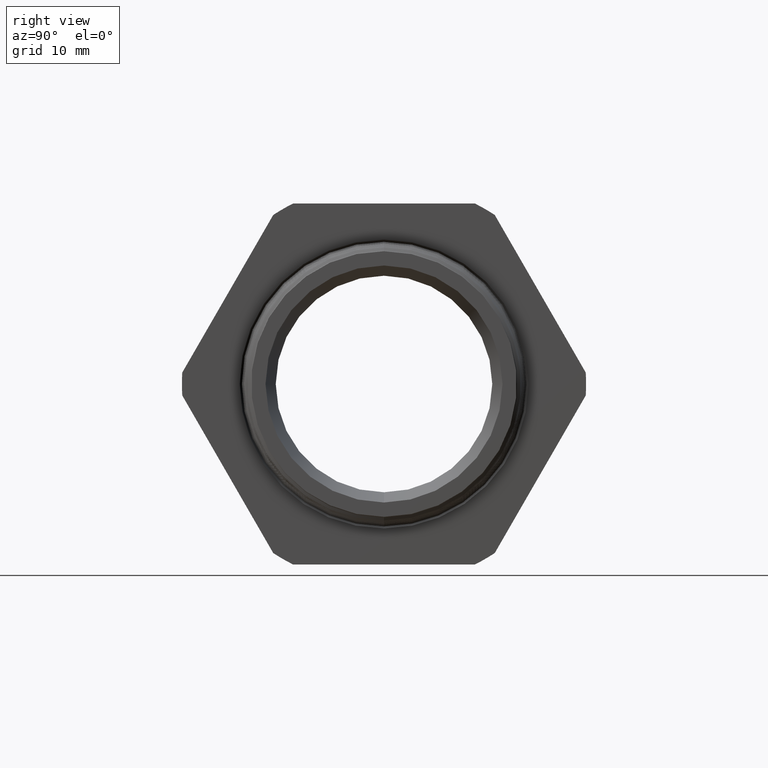
[diagram: clean part render]
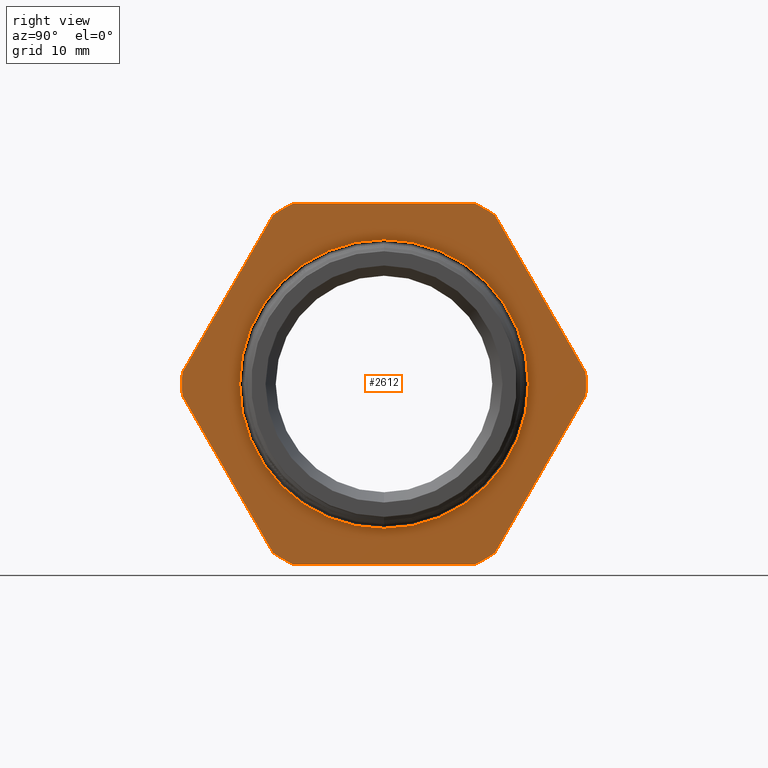
[diagram: same view with one face highlighted and labeled with its STEP entity id]
A machine part, right view. The second image highlights one B-rep face of the part: STEP entity #2612.
In plain terms, the highlighted planar face has unit normal (-1, 0, 0).
Its self-contained STEP definition (entity closure, byte-faithful):
#629 = DIRECTION ( 'NONE',  ( 0.0000000000000000000, 0.0000000000000000000, 1.000000000000000000 ) ) ;
#630 = DIRECTION ( 'NONE',  ( -1.000000000000000000, 0.0000000000000000000, 0.0000000000000000000 ) ) ;
#631 = CARTESIAN_POINT ( 'NONE',  ( 0.0000000000000000000, 0.0000000000000000000, 0.0000000000000000000 ) ) ;
#632 = AXIS2_PLACEMENT_3D ( 'NONE', #631, #630, #629 ) ;
#633 = CIRCLE ( 'NONE', #632, 0.7280000000000000900 ) ;
#666 = DIRECTION ( 'NONE',  ( 0.0000000000000000000, 0.0000000000000000000, 1.000000000000000000 ) ) ;
#667 = DIRECTION ( 'NONE',  ( -1.000000000000000000, 0.0000000000000000000, 0.0000000000000000000 ) ) ;
#668 = CARTESIAN_POINT ( 'NONE',  ( 0.0000000000000000000, 0.7280000000000000900, 0.0000000000000000000 ) ) ;
#669 = AXIS2_PLACEMENT_3D ( 'NONE', #668, #667, #666 ) ;
#670 = PLANE ( 'NONE',  #669 ) ;
#671 = FACE_BOUND ( 'NONE', #3152, .T. ) ;
#672 = FACE_OUTER_BOUND ( 'NONE', #2611, .T. ) ;
#673 = CARTESIAN_POINT ( 'NONE',  ( 0.0000000000000000000, -0.7268402752278255700, -0.04107571431805972400 ) ) ;
#674 = CARTESIAN_POINT ( 'NONE',  ( 0.0000000000000000000, -0.3989927496919442600, -0.6089242856819405700 ) ) ;
#675 = CARTESIAN_POINT ( 'NONE',  ( 0.0000000000000000000, -0.3278475255358812000, -0.6499999999999999100 ) ) ;
#680 = DIRECTION ( 'NONE',  ( 0.0000000000000000000, 0.5000000000000003300, -0.8660254037844383700 ) ) ;
#681 = VECTOR ( 'NONE', #680, 39.37007874015748100 ) ;
#682 = CARTESIAN_POINT ( 'NONE',  ( 0.0000000000000000000, -0.7268402752278255700, -0.04107571431805972400 ) ) ;
#683 = LINE ( 'NONE', #682, #681 ) ;
#704 = DIRECTION ( 'NONE',  ( 0.0000000000000000000, 0.0000000000000000000, 1.000000000000000000 ) ) ;
#705 = DIRECTION ( 'NONE',  ( 1.000000000000000000, 0.0000000000000000000, 0.0000000000000000000 ) ) ;
#706 = AXIS2_PLACEMENT_3D ( 'NONE', #711, #705, #704 ) ;
#707 = CIRCLE ( 'NONE', #706, 0.5199999999999999100 ) ;
#711 = CARTESIAN_POINT ( 'NONE',  ( 0.0000000000000000000, 0.0000000000000000000, 0.0000000000000000000 ) ) ;
#882 = CARTESIAN_POINT ( 'NONE',  ( 0.0000000000000000000, -0.7268402752278255700, 0.04107571431805941800 ) ) ;
#919 = DIRECTION ( 'NONE',  ( 0.0000000000000000000, -0.5000000000000001100, -0.8660254037844386000 ) ) ;
#920 = VECTOR ( 'NONE', #919, 39.37007874015748100 ) ;
#921 = CARTESIAN_POINT ( 'NONE',  ( 0.0000000000000000000, -0.3989927496919442600, 0.6089242856819405700 ) ) ;
#922 = LINE ( 'NONE', #921, #920 ) ;
#966 = DIRECTION ( 'NONE',  ( 0.0000000000000000000, 0.0000000000000000000, 1.000000000000000000 ) ) ;
#967 = DIRECTION ( 'NONE',  ( -1.000000000000000000, 0.0000000000000000000, 0.0000000000000000000 ) ) ;
#968 = CARTESIAN_POINT ( 'NONE',  ( 0.0000000000000000000, 0.0000000000000000000, 0.0000000000000000000 ) ) ;
#969 = AXIS2_PLACEMENT_3D ( 'NONE', #968, #967, #966 ) ;
#970 = CIRCLE ( 'NONE', #969, 0.7280000000000000900 ) ;
#971 = CARTESIAN_POINT ( 'NONE',  ( 0.0000000000000000000, -0.3989927496919439800, 0.6089242856819409000 ) ) ;
#1029 = CARTESIAN_POINT ( 'NONE',  ( 0.0000000000000000000, -0.3278475255358813700, 0.6499999999999999100 ) ) ;
#1030 = DIRECTION ( 'NONE',  ( 0.0000000000000000000, -1.000000000000000000, 0.0000000000000000000 ) ) ;
#1031 = VECTOR ( 'NONE', #1030, 39.37007874015748100 ) ;
#1032 = CARTESIAN_POINT ( 'NONE',  ( 0.0000000000000000000, 0.3278475255358813700, 0.6499999999999999100 ) ) ;
#1033 = LINE ( 'NONE', #1032, #1031 ) ;
#1034 = LINE ( 'NONE', #1095, #1094 ) ;
#1035 = DIRECTION ( 'NONE',  ( 0.0000000000000000000, -0.5000000000000003300, 0.8660254037844383700 ) ) ;
#1036 = VECTOR ( 'NONE', #1035, 39.37007874015748100 ) ;
#1037 = CARTESIAN_POINT ( 'NONE',  ( 0.0000000000000000000, 0.7268402752278256800, 0.04107571431805962700 ) ) ;
#1038 = DIRECTION ( 'NONE',  ( 0.0000000000000000000, 0.0000000000000000000, 1.000000000000000000 ) ) ;
#1039 = DIRECTION ( 'NONE',  ( -1.000000000000000000, 0.0000000000000000000, 0.0000000000000000000 ) ) ;
#1040 = CARTESIAN_POINT ( 'NONE',  ( 0.0000000000000000000, 0.0000000000000000000, 0.0000000000000000000 ) ) ;
#1041 = AXIS2_PLACEMENT_3D ( 'NONE', #1040, #1039, #1038 ) ;
#1042 = CIRCLE ( 'NONE', #1041, 0.7280000000000000900 ) ;
#1043 = LINE ( 'NONE', #1037, #1036 ) ;
#1044 = CARTESIAN_POINT ( 'NONE',  ( 0.0000000000000000000, 0.3278475255358810900, -0.6500000000000000200 ) ) ;
#1045 = CARTESIAN_POINT ( 'NONE',  ( 0.0000000000000000000, 0.3989927496919443200, 0.6089242856819405700 ) ) ;
#1051 = DIRECTION ( 'NONE',  ( 0.0000000000000000000, 0.0000000000000000000, 1.000000000000000000 ) ) ;
#1052 = DIRECTION ( 'NONE',  ( -1.000000000000000000, 0.0000000000000000000, 0.0000000000000000000 ) ) ;
#1053 = CARTESIAN_POINT ( 'NONE',  ( 0.0000000000000000000, 0.0000000000000000000, 0.0000000000000000000 ) ) ;
#1054 = AXIS2_PLACEMENT_3D ( 'NONE', #1053, #1052, #1051 ) ;
#1055 = CIRCLE ( 'NONE', #1054, 0.7280000000000000900 ) ;
#1056 = CARTESIAN_POINT ( 'NONE',  ( 0.0000000000000000000, 0.3278475255358814200, 0.6499999999999998000 ) ) ;
#1058 = CARTESIAN_POINT ( 'NONE',  ( 0.0000000000000000000, 0.3989927496919443200, -0.6089242856819405700 ) ) ;
#1064 = CARTESIAN_POINT ( 'NONE',  ( 0.0000000000000000000, 0.7268402752278256800, -0.04107571431805931400 ) ) ;
#1086 = DIRECTION ( 'NONE',  ( 0.0000000000000000000, 0.0000000000000000000, 1.000000000000000000 ) ) ;
#1087 = DIRECTION ( 'NONE',  ( -1.000000000000000000, 0.0000000000000000000, 0.0000000000000000000 ) ) ;
#1088 = CARTESIAN_POINT ( 'NONE',  ( 0.0000000000000000000, 0.0000000000000000000, 0.0000000000000000000 ) ) ;
#1089 = AXIS2_PLACEMENT_3D ( 'NONE', #1088, #1087, #1086 ) ;
#1090 = CIRCLE ( 'NONE', #1089, 0.7280000000000000900 ) ;
#1091 = CARTESIAN_POINT ( 'NONE',  ( 0.0000000000000000000, 0.7268402752278255700, 0.04107571431805956400 ) ) ;
#1093 = DIRECTION ( 'NONE',  ( 0.0000000000000000000, 1.000000000000000000, 0.0000000000000000000 ) ) ;
#1094 = VECTOR ( 'NONE', #1093, 39.37007874015748100 ) ;
#1095 = CARTESIAN_POINT ( 'NONE',  ( 0.0000000000000000000, -0.3278475255358810900, -0.6500000000000000200 ) ) ;
#1105 = DIRECTION ( 'NONE',  ( 0.0000000000000000000, 0.5000000000000001100, 0.8660254037844386000 ) ) ;
#1106 = VECTOR ( 'NONE', #1105, 39.37007874015748100 ) ;
#1107 = CARTESIAN_POINT ( 'NONE',  ( 0.0000000000000000000, 0.3989927496919443200, -0.6089242856819405700 ) ) ;
#1108 = LINE ( 'NONE', #1107, #1106 ) ;
#1248 = DIRECTION ( 'NONE',  ( 0.0000000000000000000, 0.0000000000000000000, 1.000000000000000000 ) ) ;
#1249 = DIRECTION ( 'NONE',  ( 1.000000000000000000, 0.0000000000000000000, 0.0000000000000000000 ) ) ;
#1250 = CARTESIAN_POINT ( 'NONE',  ( 0.0000000000000000000, 0.0000000000000000000, 0.0000000000000000000 ) ) ;
#1251 = AXIS2_PLACEMENT_3D ( 'NONE', #1250, #1249, #1248 ) ;
#1252 = CIRCLE ( 'NONE', #1251, 0.5199999999999999100 ) ;
#1268 = CARTESIAN_POINT ( 'NONE',  ( 0.0000000000000000000, 0.0000000000000000000, -0.5199999999999999100 ) ) ;
#1269 = CARTESIAN_POINT ( 'NONE',  ( 0.0000000000000000000, 6.368163355566234900E-017, 0.5199999999999999100 ) ) ;
#1565 = DIRECTION ( 'NONE',  ( 0.0000000000000000000, 0.0000000000000000000, 1.000000000000000000 ) ) ;
#1566 = DIRECTION ( 'NONE',  ( -1.000000000000000000, 0.0000000000000000000, 0.0000000000000000000 ) ) ;
#1567 = CARTESIAN_POINT ( 'NONE',  ( 0.0000000000000000000, 0.0000000000000000000, 0.0000000000000000000 ) ) ;
#1568 = AXIS2_PLACEMENT_3D ( 'NONE', #1567, #1566, #1565 ) ;
#1569 = CIRCLE ( 'NONE', #1568, 0.7280000000000000900 ) ;
#2594 = ORIENTED_EDGE ( 'NONE', *, *, #2600, .T. ) ;
#2595 = EDGE_CURVE ( 'NONE', #2607, #2608, #633, .T. ) ;
#2600 = EDGE_CURVE ( 'NONE', #2610, #2608, #683, .T. ) ;
#2604 = ORIENTED_EDGE ( 'NONE', *, *, #2595, .F. ) ;
#2607 = VERTEX_POINT ( 'NONE', #675 ) ;
#2608 = VERTEX_POINT ( 'NONE', #674 ) ;
#2610 = VERTEX_POINT ( 'NONE', #673 ) ;
#2611 = EDGE_LOOP ( 'NONE', ( #2594, #2604, #2862, #2853, #2833, #2867, #2869, #2855, #2828, #2817, #2788, #2763 ) ) ;
#2612 = ADVANCED_FACE ( 'NONE', ( #672, #671 ), #670, .F. ) ;
#2617 = ORIENTED_EDGE ( 'NONE', *, *, #2622, .F. ) ;
#2622 = EDGE_CURVE ( 'NONE', #2999, #2998, #707, .T. ) ;
#2737 = ORIENTED_EDGE ( 'NONE', *, *, #2970, .F. ) ;
#2763 = ORIENTED_EDGE ( 'NONE', *, *, #3149, .F. ) ;
#2773 = VERTEX_POINT ( 'NONE', #882 ) ;
#2788 = ORIENTED_EDGE ( 'NONE', *, *, #2789, .T. ) ;
#2789 = EDGE_CURVE ( 'NONE', #2792, #2773, #922, .T. ) ;
#2792 = VERTEX_POINT ( 'NONE', #971 ) ;
#2794 = EDGE_CURVE ( 'NONE', #2792, #2827, #970, .T. ) ;
#2817 = ORIENTED_EDGE ( 'NONE', *, *, #2794, .F. ) ;
#2826 = EDGE_CURVE ( 'NONE', #2851, #2827, #1033, .T. ) ;
#2827 = VERTEX_POINT ( 'NONE', #1029 ) ;
#2828 = ORIENTED_EDGE ( 'NONE', *, *, #2826, .T. ) ;
#2833 = ORIENTED_EDGE ( 'NONE', *, *, #2897, .T. ) ;
#2848 = VERTEX_POINT ( 'NONE', #1058 ) ;
#2851 = VERTEX_POINT ( 'NONE', #1056 ) ;
#2852 = EDGE_CURVE ( 'NONE', #2848, #2858, #1055, .T. ) ;
#2853 = ORIENTED_EDGE ( 'NONE', *, *, #2852, .F. ) ;
#2855 = ORIENTED_EDGE ( 'NONE', *, *, #2859, .F. ) ;
#2856 = VERTEX_POINT ( 'NONE', #1045 ) ;
#2858 = VERTEX_POINT ( 'NONE', #1044 ) ;
#2859 = EDGE_CURVE ( 'NONE', #2851, #2856, #1042, .T. ) ;
#2860 = EDGE_CURVE ( 'NONE', #2868, #2856, #1043, .T. ) ;
#2861 = EDGE_CURVE ( 'NONE', #2607, #2858, #1034, .T. ) ;
#2862 = ORIENTED_EDGE ( 'NONE', *, *, #2861, .T. ) ;
#2867 = ORIENTED_EDGE ( 'NONE', *, *, #2870, .F. ) ;
#2868 = VERTEX_POINT ( 'NONE', #1091 ) ;
#2869 = ORIENTED_EDGE ( 'NONE', *, *, #2860, .T. ) ;
#2870 = EDGE_CURVE ( 'NONE', #2868, #2887, #1090, .T. ) ;
#2887 = VERTEX_POINT ( 'NONE', #1064 ) ;
#2897 = EDGE_CURVE ( 'NONE', #2848, #2887, #1108, .T. ) ;
#2970 = EDGE_CURVE ( 'NONE', #2998, #2999, #1252, .T. ) ;
#2998 = VERTEX_POINT ( 'NONE', #1269 ) ;
#2999 = VERTEX_POINT ( 'NONE', #1268 ) ;
#3149 = EDGE_CURVE ( 'NONE', #2610, #2773, #1569, .T. ) ;
#3152 = EDGE_LOOP ( 'NONE', ( #2617, #2737 ) ) ;